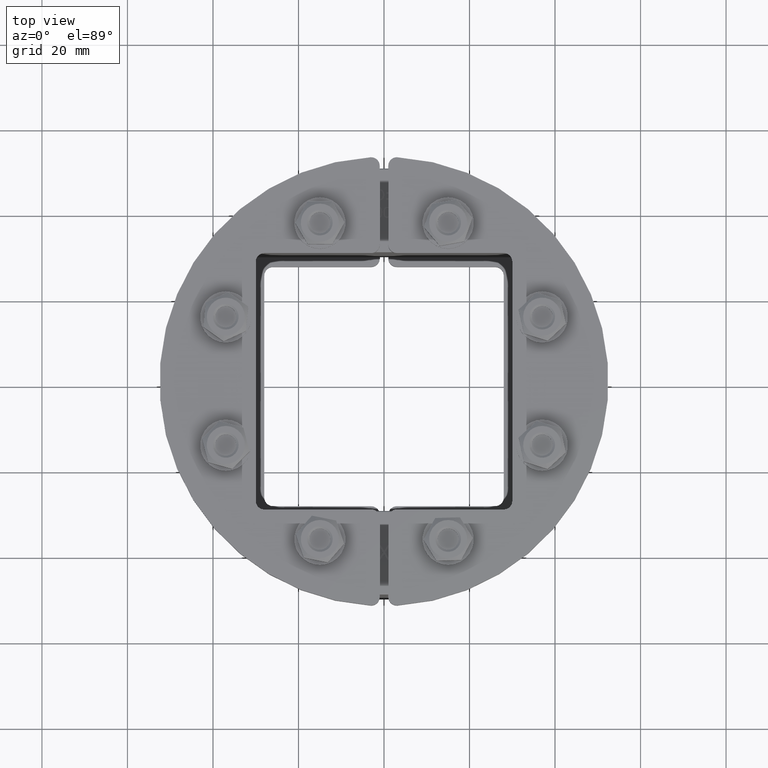
[diagram: clean part render]
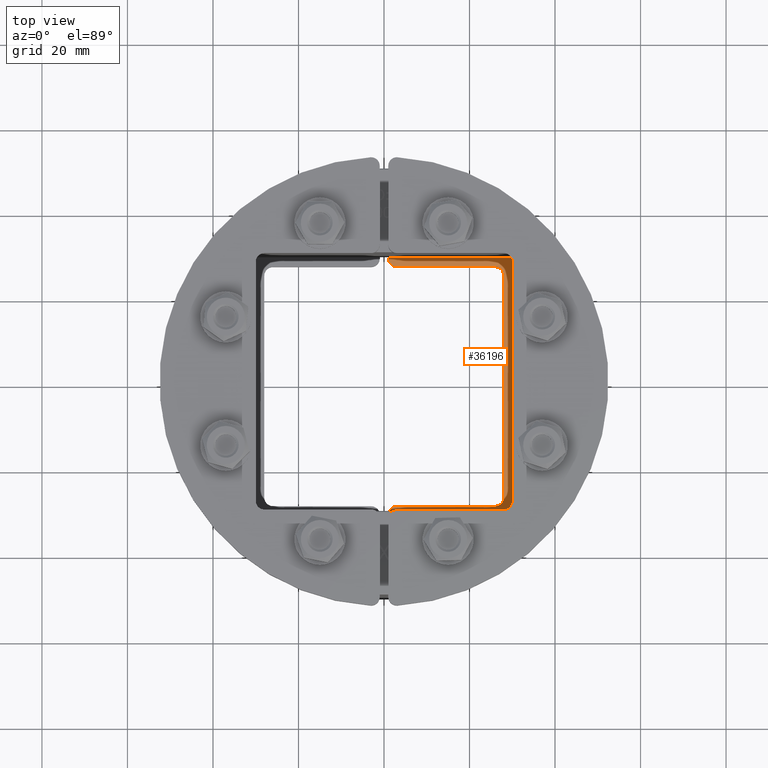
[diagram: same view with one face highlighted and labeled with its STEP entity id]
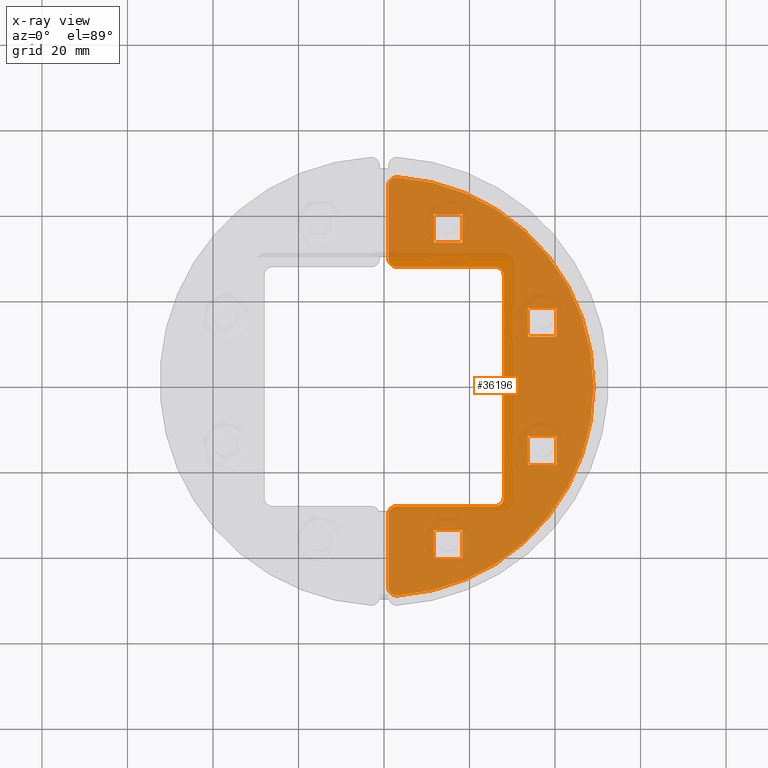
[diagram: x-ray of the same camera — body ghosted, the highlighted face saturated]
A machine part, top view. The second image highlights one B-rep face of the part: STEP entity #36196.
The next image is the same camera in x-ray: the body ghosted, the highlighted face saturated — about 89% of this face is hidden behind the body in this view.
In plain terms, the highlighted planar face has unit normal (0, 0, -1).
Its self-contained STEP definition (entity closure, byte-faithful):
#35910=CARTESIAN_POINT('',(48.900079198159162,-3.12765957446807,0.0));
#35911=VERTEX_POINT('',#35910);
#35918=CARTESIAN_POINT('',(46.904157598234299,-0.999999999999986,0.0));
#35919=VERTEX_POINT('',#35918);
#35920=CARTESIAN_POINT('',(46.904157598234299,-2.999999999999986,0.0));
#35921=DIRECTION('',(0.0,0.0,1.0));
#35922=DIRECTION('',(0.729324957489472,0.684167454928236,0.0));
#35923=AXIS2_PLACEMENT_3D('',#35920,#35921,#35922);
#35924=CIRCLE('',#35923,2.0);
#35925=EDGE_CURVE('',#35911,#35919,#35924,.T.);
#35942=CARTESIAN_POINT('',(30.000000000000004,-0.999999999999991,0.0));
#35943=VERTEX_POINT('',#35942);
#35944=CARTESIAN_POINT('',(30.000000000000007,-0.999999999999991,0.0));
#35945=DIRECTION('',(1.0,0.0,0.0));
#35946=VECTOR('',#35945,16.904157598234292);
#35947=LINE('',#35944,#35946);
#35948=EDGE_CURVE('',#35943,#35919,#35947,.T.);
#35967=CARTESIAN_POINT('',(-1.831868E-014,-22.164934044324511,0.0));
#35968=DIRECTION('',(0.0,0.0,1.0));
#35969=DIRECTION('',(1.0,0.0,0.0));
#35970=AXIS2_PLACEMENT_3D('',#35967,#35968,#35969);
#35971=PLANE('',#35970);
#35972=ORIENTED_EDGE('',*,*,#35925,.F.);
#35973=CARTESIAN_POINT('',(-48.900079198159162,-3.127659574468089,0.0));
#35974=VERTEX_POINT('',#35973);
#35975=CARTESIAN_POINT('',(0.0,0.0,0.0));
#35976=DIRECTION('',(0.0,0.0,-1.0));
#35977=DIRECTION('',(0.999791731748236,0.020408163265306,0.0));
#35978=AXIS2_PLACEMENT_3D('',#35975,#35976,#35977);
#35979=CIRCLE('',#35978,49.000000000000007);
#35980=EDGE_CURVE('',#35911,#35974,#35979,.T.);
#35981=ORIENTED_EDGE('',*,*,#35980,.T.);
#35982=CARTESIAN_POINT('',(-46.904157598234306,-1.000000000000009,0.0));
#35983=VERTEX_POINT('',#35982);
#35984=CARTESIAN_POINT('',(-46.904157598234306,-3.000000000000004,0.0));
#35985=DIRECTION('',(0.0,0.0,1.0));
#35986=DIRECTION('',(-0.729324957489473,0.684167454928235,0.0));
#35987=AXIS2_PLACEMENT_3D('',#35984,#35985,#35986);
#35988=CIRCLE('',#35987,2.0);
#35989=EDGE_CURVE('',#35983,#35974,#35988,.T.);
#35990=ORIENTED_EDGE('',*,*,#35989,.F.);
#35991=CARTESIAN_POINT('',(-30.000000000000007,-1.000000000000006,0.0));
#35992=VERTEX_POINT('',#35991);
#35993=CARTESIAN_POINT('',(-46.904157598234306,-1.000000000000009,0.0));
#35994=DIRECTION('',(1.0,0.0,0.0));
#35995=VECTOR('',#35994,16.904157598234296);
#35996=LINE('',#35993,#35995);
#35997=EDGE_CURVE('',#35983,#35992,#35996,.T.);
#35998=ORIENTED_EDGE('',*,*,#35997,.T.);
#35999=CARTESIAN_POINT('',(-28.000000000000004,-3.000000000000005,0.0));
#36000=VERTEX_POINT('',#35999);
#36001=CARTESIAN_POINT('',(-30.000000000000007,-3.000000000000006,0.0));
#36002=DIRECTION('',(0.0,0.0,1.0));
#36003=DIRECTION('',(0.707106781186549,0.707106781186546,0.0));
#36004=AXIS2_PLACEMENT_3D('',#36001,#36002,#36003);
#36005=CIRCLE('',#36004,2.0);
#36006=EDGE_CURVE('',#36000,#35992,#36005,.T.);
#36007=ORIENTED_EDGE('',*,*,#36006,.F.);
#36008=CARTESIAN_POINT('',(-28.0,-26.000000000000007,0.0));
#36009=VERTEX_POINT('',#36008);
#36010=CARTESIAN_POINT('',(-28.000000000000004,-3.000000000000005,0.0));
#36011=DIRECTION('',(0.0,-1.0,0.0));
#36012=VECTOR('',#36011,23.0);
#36013=LINE('',#36010,#36012);
#36014=EDGE_CURVE('',#36000,#36009,#36013,.T.);
#36015=ORIENTED_EDGE('',*,*,#36014,.T.);
#36016=CARTESIAN_POINT('',(-25.999999999999996,-28.000000000000007,0.0));
#36017=VERTEX_POINT('',#36016);
#36018=CARTESIAN_POINT('',(-25.999999999999996,-26.000000000000007,0.0));
#36019=DIRECTION('',(0.0,0.0,-1.0));
#36020=DIRECTION('',(-0.707106781186548,-0.707106781186548,0.0));
#36021=AXIS2_PLACEMENT_3D('',#36018,#36019,#36020);
#36022=CIRCLE('',#36021,2.0);
#36023=EDGE_CURVE('',#36017,#36009,#36022,.T.);
#36024=ORIENTED_EDGE('',*,*,#36023,.F.);
#36025=CARTESIAN_POINT('',(26.000000000000014,-28.0,0.0));
#36026=VERTEX_POINT('',#36025);
#36027=CARTESIAN_POINT('',(-26.0,-28.000000000000007,0.0));
#36028=DIRECTION('',(1.0,0.0,0.0));
#36029=VECTOR('',#36028,52.000000000000014);
#36030=LINE('',#36027,#36029);
#36031=EDGE_CURVE('',#36017,#36026,#36030,.T.);
#36032=ORIENTED_EDGE('',*,*,#36031,.T.);
#36033=CARTESIAN_POINT('',(28.000000000000014,-25.999999999999996,0.0));
#36034=VERTEX_POINT('',#36033);
#36035=CARTESIAN_POINT('',(26.000000000000014,-25.999999999999996,0.0));
#36036=DIRECTION('',(0.0,0.0,-1.0));
#36037=DIRECTION('',(0.707106781186548,-0.707106781186548,0.0));
#36038=AXIS2_PLACEMENT_3D('',#36035,#36036,#36037);
#36039=CIRCLE('',#36038,2.0);
#36040=EDGE_CURVE('',#36034,#36026,#36039,.T.);
#36041=ORIENTED_EDGE('',*,*,#36040,.F.);
#36042=CARTESIAN_POINT('',(28.000000000000004,-2.999999999999994,0.0));
#36043=VERTEX_POINT('',#36042);
#36044=CARTESIAN_POINT('',(28.000000000000014,-26.0,0.0));
#36045=DIRECTION('',(0.0,1.0,0.0));
#36046=VECTOR('',#36045,23.000000000000004);
#36047=LINE('',#36044,#36046);
#36048=EDGE_CURVE('',#36034,#36043,#36047,.T.);
#36049=ORIENTED_EDGE('',*,*,#36048,.T.);
#36050=CARTESIAN_POINT('',(30.000000000000004,-2.999999999999993,0.0));
#36051=DIRECTION('',(0.0,0.0,1.0));
#36052=DIRECTION('',(-0.707106781186548,0.707106781186547,0.0));
#36053=AXIS2_PLACEMENT_3D('',#36050,#36051,#36052);
#36054=CIRCLE('',#36053,2.0);
#36055=EDGE_CURVE('',#35943,#36043,#36054,.T.);
#36056=ORIENTED_EDGE('',*,*,#36055,.F.);
#36057=ORIENTED_EDGE('',*,*,#35948,.T.);
#36058=EDGE_LOOP('',(#35972,#35981,#35990,#35998,#36007,#36015,#36024,#36032,#36041,#36049,#36056,#36057));
#36059=FACE_OUTER_BOUND('',#36058,.T.);
#36060=CARTESIAN_POINT('',(33.650000000000006,-11.65,0.0));
#36061=VERTEX_POINT('',#36060);
#36062=CARTESIAN_POINT('',(33.650000000000006,-18.350000000000001,0.0));
#36063=VERTEX_POINT('',#36062);
#36064=CARTESIAN_POINT('',(33.650000000000006,-11.65,0.0));
#36065=DIRECTION('',(0.0,-1.0,0.0));
#36066=VECTOR('',#36065,6.700000000000001);
#36067=LINE('',#36064,#36066);
#36068=EDGE_CURVE('',#36061,#36063,#36067,.T.);
#36069=ORIENTED_EDGE('',*,*,#36068,.T.);
#36070=CARTESIAN_POINT('',(40.350000000000001,-18.350000000000001,0.0));
#36071=VERTEX_POINT('',#36070);
#36072=CARTESIAN_POINT('',(33.650000000000006,-18.350000000000001,0.0));
#36073=DIRECTION('',(1.0,0.0,0.0));
#36074=VECTOR('',#36073,6.699999999999996);
#36075=LINE('',#36072,#36074);
#36076=EDGE_CURVE('',#36063,#36071,#36075,.T.);
#36077=ORIENTED_EDGE('',*,*,#36076,.T.);
#36078=CARTESIAN_POINT('',(40.350000000000001,-11.65,0.0));
#36079=VERTEX_POINT('',#36078);
#36080=CARTESIAN_POINT('',(40.350000000000001,-18.349999999999998,0.0));
#36081=DIRECTION('',(0.0,1.0,0.0));
#36082=VECTOR('',#36081,6.699999999999999);
#36083=LINE('',#36080,#36082);
#36084=EDGE_CURVE('',#36071,#36079,#36083,.T.);
#36085=ORIENTED_EDGE('',*,*,#36084,.T.);
#36086=CARTESIAN_POINT('',(40.350000000000001,-11.65,0.0));
#36087=DIRECTION('',(-1.0,0.0,0.0));
#36088=VECTOR('',#36087,6.700000000000003);
#36089=LINE('',#36086,#36088);
#36090=EDGE_CURVE('',#36079,#36061,#36089,.T.);
#36091=ORIENTED_EDGE('',*,*,#36090,.T.);
#36092=EDGE_LOOP('',(#36069,#36077,#36085,#36091));
#36093=FACE_BOUND('',#36092,.T.);
#36094=CARTESIAN_POINT('',(11.649999999999995,-33.649999999999999,0.0));
#36095=VERTEX_POINT('',#36094);
#36096=CARTESIAN_POINT('',(11.65,-40.350000000000001,0.0));
#36097=VERTEX_POINT('',#36096);
#36098=CARTESIAN_POINT('',(11.649999999999995,-33.649999999999999,0.0));
#36099=DIRECTION('',(0.0,-1.0,0.0));
#36100=VECTOR('',#36099,6.700000000000003);
#36101=LINE('',#36098,#36100);
#36102=EDGE_CURVE('',#36095,#36097,#36101,.T.);
#36103=ORIENTED_EDGE('',*,*,#36102,.T.);
#36104=CARTESIAN_POINT('',(18.350000000000001,-40.350000000000001,0.0));
#36105=VERTEX_POINT('',#36104);
#36106=CARTESIAN_POINT('',(11.65,-40.350000000000001,0.0));
#36107=DIRECTION('',(1.0,0.0,0.0));
#36108=VECTOR('',#36107,6.700000000000001);
#36109=LINE('',#36106,#36108);
#36110=EDGE_CURVE('',#36097,#36105,#36109,.T.);
#36111=ORIENTED_EDGE('',*,*,#36110,.T.);
#36112=CARTESIAN_POINT('',(18.350000000000005,-33.649999999999999,0.0));
#36113=VERTEX_POINT('',#36112);
#36114=CARTESIAN_POINT('',(18.349999999999998,-40.350000000000001,0.0));
#36115=DIRECTION('',(0.0,1.0,0.0));
#36116=VECTOR('',#36115,6.700000000000003);
#36117=LINE('',#36114,#36116);
#36118=EDGE_CURVE('',#36105,#36113,#36117,.T.);
#36119=ORIENTED_EDGE('',*,*,#36118,.T.);
#36120=CARTESIAN_POINT('',(18.350000000000005,-33.649999999999991,0.0));
#36121=DIRECTION('',(-1.0,0.0,0.0));
#36122=VECTOR('',#36121,6.700000000000008);
#36123=LINE('',#36120,#36122);
#36124=EDGE_CURVE('',#36113,#36095,#36123,.T.);
#36125=ORIENTED_EDGE('',*,*,#36124,.T.);
#36126=EDGE_LOOP('',(#36103,#36111,#36119,#36125));
#36127=FACE_BOUND('',#36126,.T.);
#36128=CARTESIAN_POINT('',(-18.350000000000001,-33.649999999999999,0.0));
#36129=VERTEX_POINT('',#36128);
#36130=CARTESIAN_POINT('',(-18.350000000000001,-40.350000000000001,0.0));
#36131=VERTEX_POINT('',#36130);
#36132=CARTESIAN_POINT('',(-18.350000000000001,-33.649999999999999,0.0));
#36133=DIRECTION('',(0.0,-1.0,0.0));
#36134=VECTOR('',#36133,6.700000000000003);
#36135=LINE('',#36132,#36134);
#36136=EDGE_CURVE('',#36129,#36131,#36135,.T.);
#36137=ORIENTED_EDGE('',*,*,#36136,.T.);
#36138=CARTESIAN_POINT('',(-11.65,-40.350000000000001,0.0));
#36139=VERTEX_POINT('',#36138);
#36140=CARTESIAN_POINT('',(-18.349999999999998,-40.350000000000001,0.0));
#36141=DIRECTION('',(1.0,0.0,0.0));
#36142=VECTOR('',#36141,6.699999999999999);
#36143=LINE('',#36140,#36142);
#36144=EDGE_CURVE('',#36131,#36139,#36143,.T.);
#36145=ORIENTED_EDGE('',*,*,#36144,.T.);
#36146=CARTESIAN_POINT('',(-11.65,-33.649999999999999,0.0));
#36147=VERTEX_POINT('',#36146);
#36148=CARTESIAN_POINT('',(-11.65,-40.350000000000001,0.0));
#36149=DIRECTION('',(0.0,1.0,0.0));
#36150=VECTOR('',#36149,6.700000000000003);
#36151=LINE('',#36148,#36150);
#36152=EDGE_CURVE('',#36139,#36147,#36151,.T.);
#36153=ORIENTED_EDGE('',*,*,#36152,.T.);
#36154=CARTESIAN_POINT('',(-11.65,-33.649999999999991,0.0));
#36155=DIRECTION('',(-1.0,0.0,0.0));
#36156=VECTOR('',#36155,6.700000000000001);
#36157=LINE('',#36154,#36156);
#36158=EDGE_CURVE('',#36147,#36129,#36157,.T.);
#36159=ORIENTED_EDGE('',*,*,#36158,.T.);
#36160=EDGE_LOOP('',(#36137,#36145,#36153,#36159));
#36161=FACE_BOUND('',#36160,.T.);
#36162=CARTESIAN_POINT('',(-40.350000000000001,-11.650000000000006,0.0));
#36163=VERTEX_POINT('',#36162);
#36164=CARTESIAN_POINT('',(-40.350000000000001,-18.350000000000005,0.0));
#36165=VERTEX_POINT('',#36164);
#36166=CARTESIAN_POINT('',(-40.350000000000001,-11.650000000000006,0.0));
#36167=DIRECTION('',(0.0,-1.0,0.0));
#36168=VECTOR('',#36167,6.699999999999999);
#36169=LINE('',#36166,#36168);
#36170=EDGE_CURVE('',#36163,#36165,#36169,.T.);
#36171=ORIENTED_EDGE('',*,*,#36170,.T.);
#36172=CARTESIAN_POINT('',(-33.649999999999999,-18.350000000000005,0.0));
#36173=VERTEX_POINT('',#36172);
#36174=CARTESIAN_POINT('',(-40.350000000000001,-18.350000000000001,0.0));
#36175=DIRECTION('',(1.0,0.0,0.0));
#36176=VECTOR('',#36175,6.700000000000003);
#36177=LINE('',#36174,#36176);
#36178=EDGE_CURVE('',#36165,#36173,#36177,.T.);
#36179=ORIENTED_EDGE('',*,*,#36178,.T.);
#36180=CARTESIAN_POINT('',(-33.650000000000006,-11.650000000000006,0.0));
#36181=VERTEX_POINT('',#36180);
#36182=CARTESIAN_POINT('',(-33.649999999999991,-18.350000000000001,0.0));
#36183=DIRECTION('',(0.0,1.0,0.0));
#36184=VECTOR('',#36183,6.699999999999998);
#36185=LINE('',#36182,#36184);
#36186=EDGE_CURVE('',#36173,#36181,#36185,.T.);
#36187=ORIENTED_EDGE('',*,*,#36186,.T.);
#36188=CARTESIAN_POINT('',(-33.650000000000006,-11.650000000000006,0.0));
#36189=DIRECTION('',(-1.0,0.0,0.0));
#36190=VECTOR('',#36189,6.699999999999996);
#36191=LINE('',#36188,#36190);
#36192=EDGE_CURVE('',#36181,#36163,#36191,.T.);
#36193=ORIENTED_EDGE('',*,*,#36192,.T.);
#36194=EDGE_LOOP('',(#36171,#36179,#36187,#36193));
#36195=FACE_BOUND('',#36194,.T.);
#36196=ADVANCED_FACE('',(#36059,#36093,#36127,#36161,#36195),#35971,.F.);